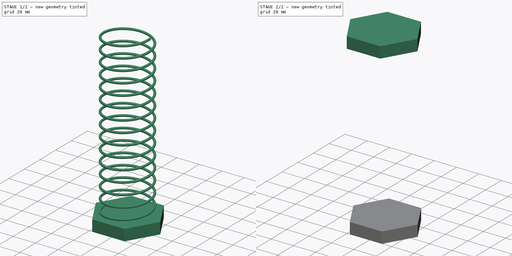
[diagram: build sequence overview — one tinted view per stage of 2, left to right]
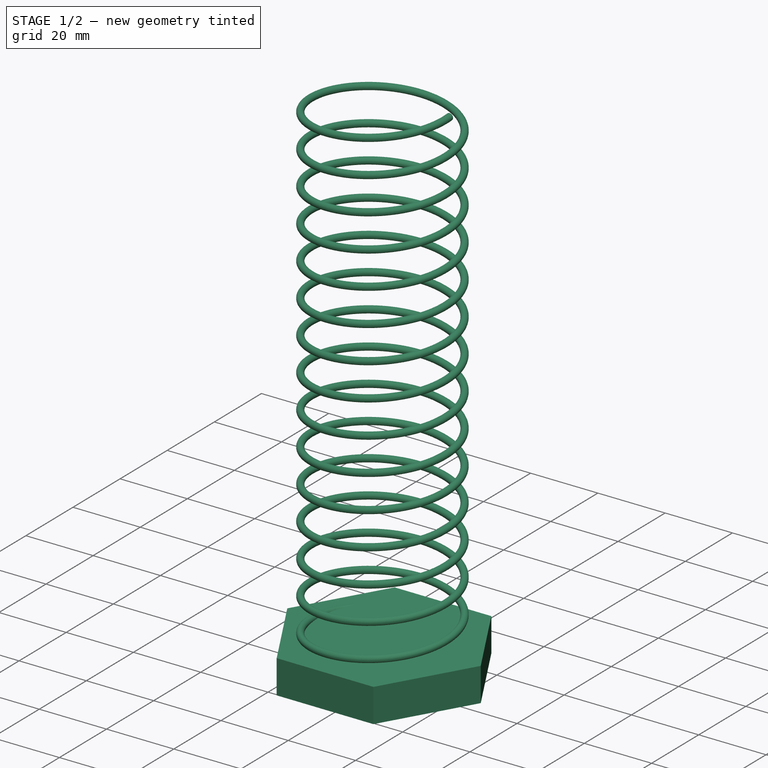
[diagram: stage 1 of 2 — iso view after this stage's code; geometry added in this stage tinted green]
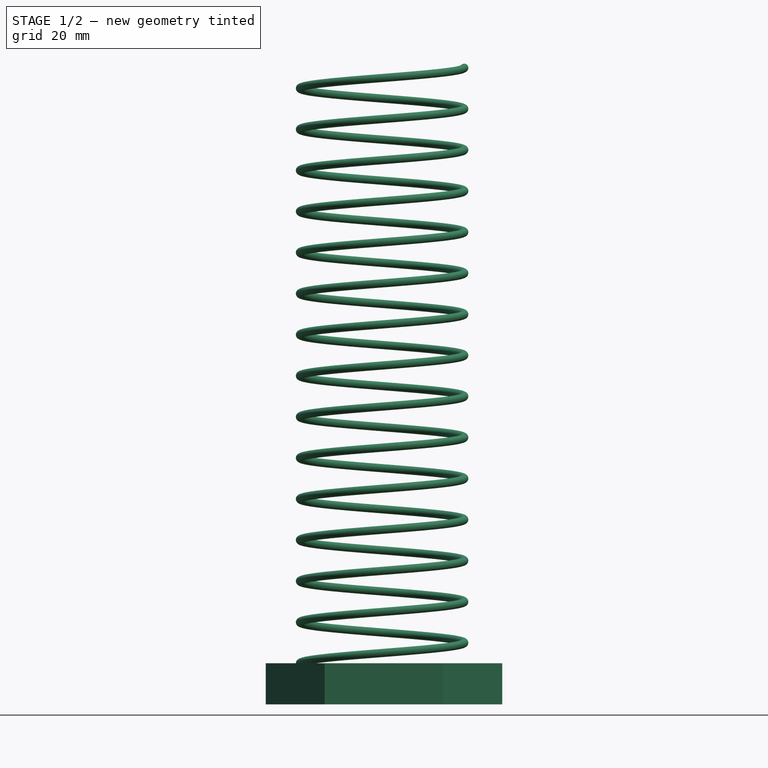
[diagram: stage 1 of 2 — front view after this stage's code; geometry added in this stage tinted green]
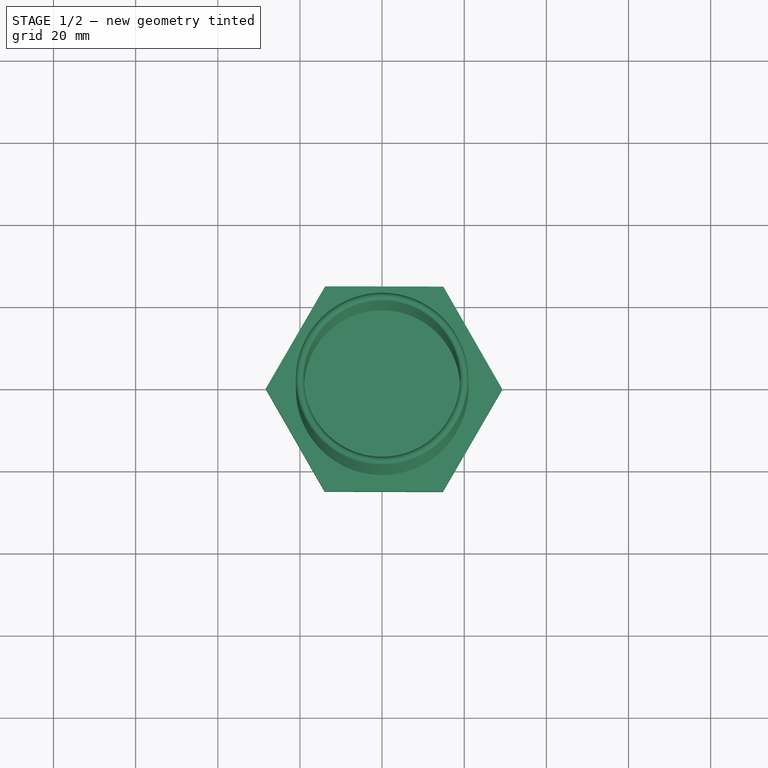
[diagram: stage 1 of 2 — top view after this stage's code; geometry added in this stage tinted green]
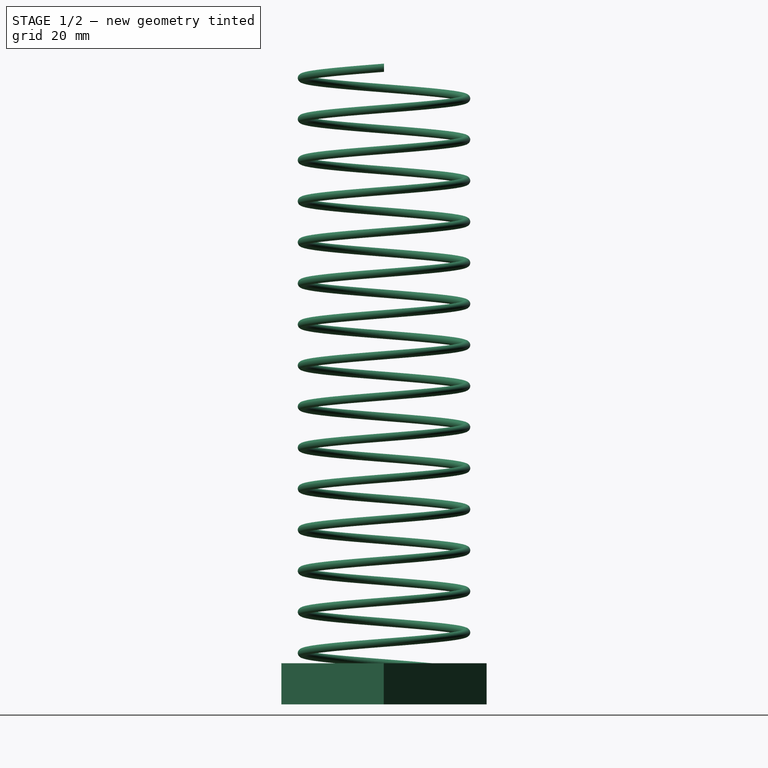
[diagram: stage 1 of 2 — right view after this stage's code; geometry added in this stage tinted green]
FCSTD DOCUMENT  (FreeCAD 0.21R33668 +26 (Git))
Label: Ressort-essai4
License: All rights reserved
LicenseURL: http://en.wikipedia.org/wiki/All_rights_reserved
objects: Sketcher::SketchObject×3, PartDesign::ShapeBinder×3, PartDesign::Plane×2, PartDesign::Pad×2, PartDesign::Body×2, Part::Helix×1, Part::Sweep×1
note: 16 computed .brp shape members not serialized (recipe doc carries the construction recipe); baked Part::Feature solids carry a one-line shape summary decoded from their .brp

FEATURE [Part::Helix] Helix001  label="Hélice001"
  Angle = 0
  AttacherType = Attacher::AttachEngine3D
  Height = 150
  LocalCoord = 0
  Pitch = 10
  Radius = 20
  SegmentLength = 0
  Style = 1
FEATURE [Sketcher::SketchObject] Sketch  label="Profile ressort"
  FullyConstrained = true
  MapMode = 5
  Placement = pos=(0,0,0) rot=(1,0,0;1.5708rad)
  Support = -> [XZ_Plane]
  sketch-geometry (1):
    g0: Circle CenterX=20 CenterY=0 CenterZ=0 NormalX=0 NormalY=0 NormalZ=1 AngleXU=0 Radius=1
  constraints (3):
    c: PointOnObject(g0,g-1)
    c: Radius(g0) = 1
    c: DistanceX(g-1,g0) = 20
FEATURE [Part::Sweep] Sweep
  Frenet = true
  Sections = -> [Sketch]
  Solid = true
  Spine = -> Helix001
  Transition = 1
FEATURE [PartDesign::Body] Body
  Group = -> [Sketch,DatumPlane,ReferenceSweep,Sketch001,Pad]
  Origin = -> Origin
  Tip = -> Pad
FEATURE [PartDesign::ShapeBinder] ReferenceSweep001
  Support = -> [Sweep]
  TraceSupport = false
FEATURE [PartDesign::ShapeBinder] ReferenceSketch
  Placement = pos=(0,0,0) rot=(1,0,0;1.5708rad)
  Support = -> [Sketch]
  TraceSupport = false
FEATURE [PartDesign::Plane] DatumPlane001
  AttachmentOffset = pos=(0,-2,0) rot=(0,1,0;1.5708rad)
  Length = 60.7329
  MapMode = 11
  Placement = pos=(22,2e-16,2e-16) rot=(0,0,1;1.5708rad)
  ResizeMode = 0
  Support = -> [ReferenceSketch]
  Width = 68.3301
FEATURE [Sketcher::SketchObject] Sketch002
  FullyConstrained = false
  MapMode = 5
  Placement = pos=(22,2e-16,2e-16) rot=(0,0,1;1.5708rad)
  Support = -> [DatumPlane001]
  sketch-geometry (7):
    g0: LineSegment StartX=-0.068299 StartY=-7.26586 StartZ=0 EndX=24.9062 EndY=7.07428 EndZ=0
    g1: LineSegment StartX=24.9062 StartY=7.07428 StartZ=0 EndX=24.9745 EndY=35.8729 EndZ=0
    g2: LineSegment StartX=24.9745 StartY=35.8729 StartZ=0 EndX=0.068299 EndY=50.3313 EndZ=0
    g3: LineSegment StartX=0.068299 StartY=50.3313 StartZ=0 EndX=-24.9062 EndY=35.9912 EndZ=0
    g4: LineSegment StartX=-24.9062 StartY=35.9912 StartZ=0 EndX=-24.9745 EndY=7.19258 EndZ=0
    g5: LineSegment StartX=-24.9745 StartY=7.19258 StartZ=0 EndX=-0.068299 EndY=-7.26586 EndZ=0
    g6: Circle CenterX=0 CenterY=21.5327 CenterZ=0 NormalX=0 NormalY=0 NormalZ=1 AngleXU=0 Radius=28.7987
  constraints (14):
    c: Coincident(g0,g1)
    c: Coincident(g1,g2)
    c: Coincident(g2,g3)
    c: Coincident(g3,g4)
    c: Coincident(g4,g5)
    c: Coincident(g5,g0)
    c: Equal(g0, g1-g5) x5
    c: PointOnObject(g0,g6)
    c: PointOnObject(g1,g6)
    c: PointOnObject(g2,g6)
    c: PointOnObject(g3,g6)
    c: PointOnObject(g4,g6)
    c: PointOnObject(g5,g6)
    c: PointOnObject(g6,g-2)
FEATURE [PartDesign::Pad] Pad001
  Direction = (-1e-16,-1e-16,1)
  Length = 10
  Length2 = 10
  Midplane = true
  Placement = pos=(22,0,0) rot=(0,0,1;1.5708rad)
  Profile = -> Sketch002
  ReferenceAxis = -> Sketch002 [N_Axis]
  Type = 0
FEATURE [PartDesign::Body] Body001  label="Corps"
  Group = -> [ReferenceSweep001,DatumPlane001,ReferenceSketch,Sketch002,Pad001]
  Origin = -> Origin001
  Tip = -> Pad001
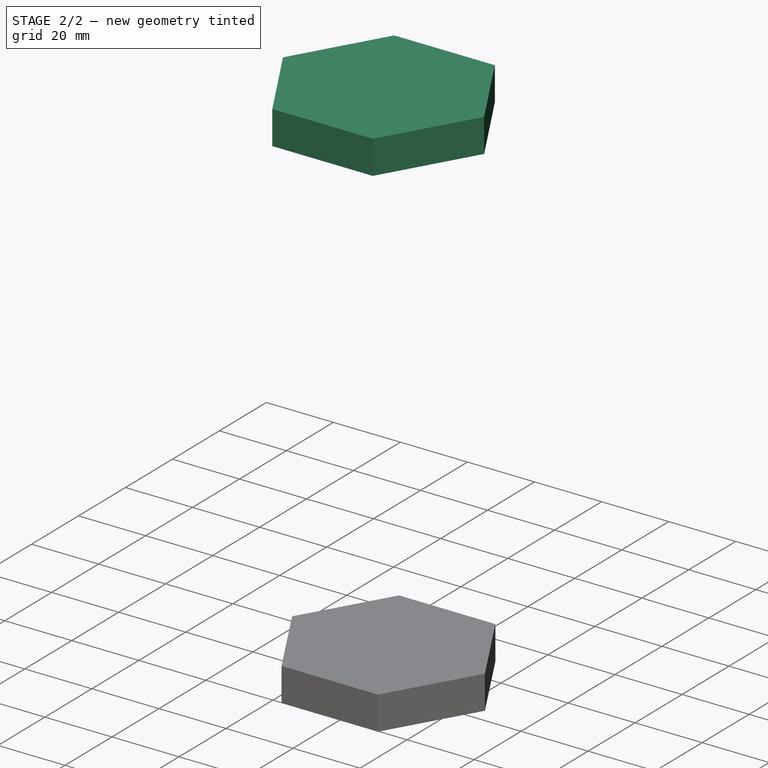
[diagram: stage 2 of 2 — iso view after this stage's code; geometry added in this stage tinted green]
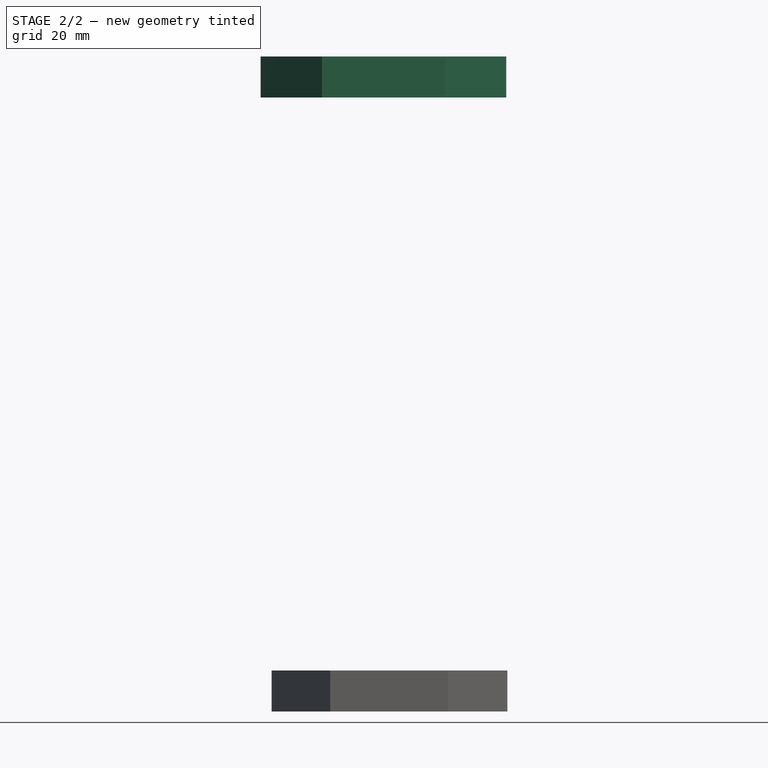
[diagram: stage 2 of 2 — front view after this stage's code; geometry added in this stage tinted green]
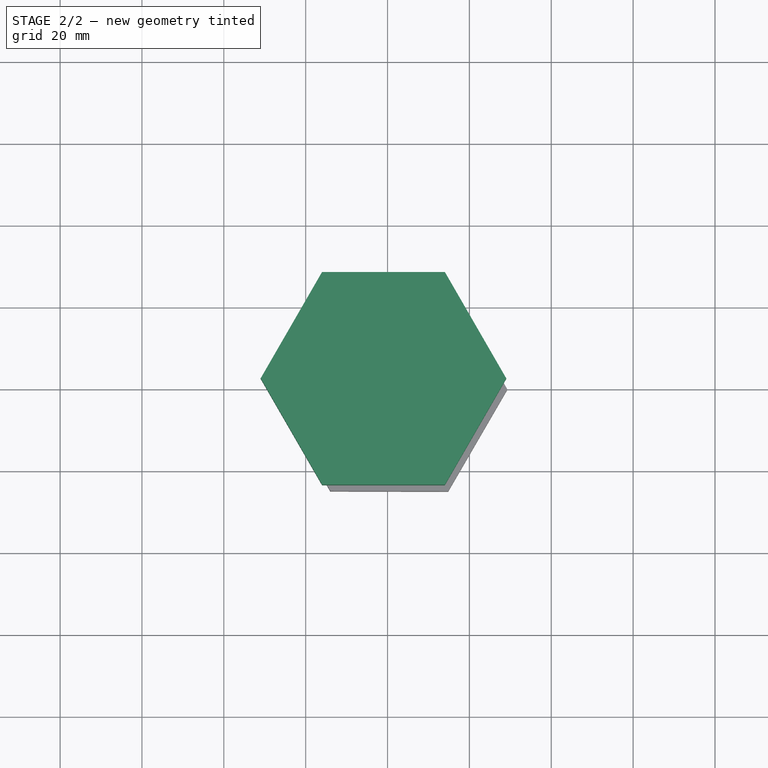
[diagram: stage 2 of 2 — top view after this stage's code; geometry added in this stage tinted green]
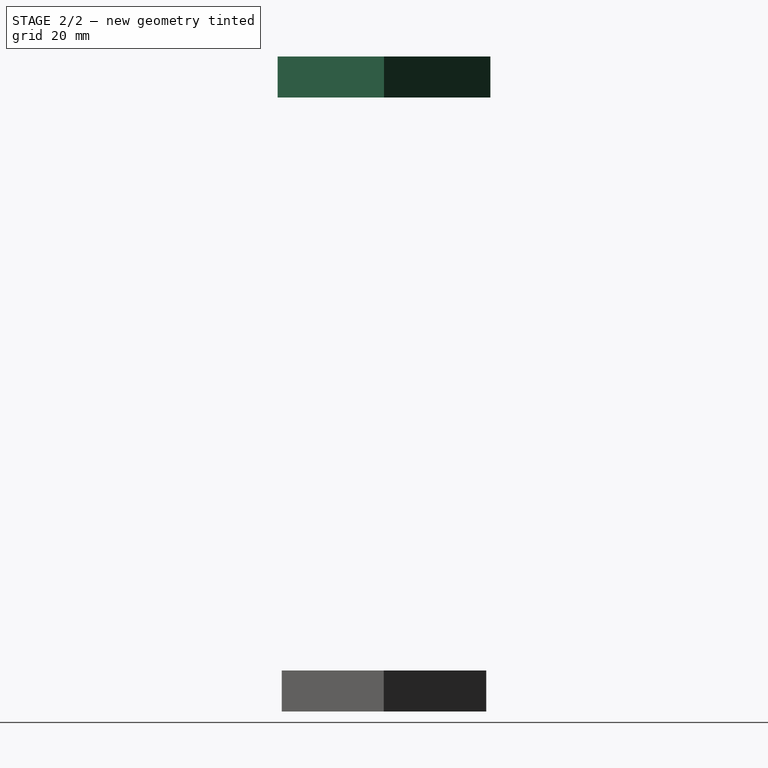
[diagram: stage 2 of 2 — right view after this stage's code; geometry added in this stage tinted green]
FEATURE [PartDesign::ShapeBinder] ReferenceSweep
  Support = -> [Sweep]
  TraceSupport = false
FEATURE [PartDesign::Plane] DatumPlane
  Length = 71.1673
  MapMode = 8
  Placement = pos=(21,4.04704e-09,150) rot=(1,0,0;3.14159rad)
  ResizeMode = 0
  Support = -> [ReferenceSweep]
  Width = 63.1288
FEATURE [Sketcher::SketchObject] Sketch001
  FullyConstrained = true
  MapMode = 5
  Placement = pos=(21,4.04704e-09,150) rot=(1,0,0;3.14159rad)
  Support = -> [DatumPlane]
  sketch-geometry (7):
    g0: LineSegment StartX=-37 StartY=-25.9808 StartZ=0 EndX=-7 EndY=-25.9808 EndZ=0
    g1: LineSegment StartX=-7 StartY=-25.9808 StartZ=0 EndX=8 EndY=3.6e-15 EndZ=0
    g2: LineSegment StartX=8 StartY=3.6e-15 StartZ=0 EndX=-7 EndY=25.9808 EndZ=0
    g3: LineSegment StartX=-7 StartY=25.9808 StartZ=0 EndX=-37 EndY=25.9808 EndZ=0
    g4: LineSegment StartX=-37 StartY=25.9808 StartZ=0 EndX=-52 EndY=0 EndZ=0
    g5: LineSegment StartX=-52 StartY=0 StartZ=0 EndX=-37 EndY=-25.9808 EndZ=0
    g6: Circle CenterX=-22 CenterY=0 CenterZ=0 NormalX=0 NormalY=0 NormalZ=1 AngleXU=0 Radius=30
  constraints (17):
    c: Coincident(g0,g1)
    c: Coincident(g1,g2)
    c: Coincident(g2,g3)
    c: Coincident(g3,g4)
    c: Coincident(g4,g5)
    c: Coincident(g5,g0)
    c: Equal(g0, g1-g5) x5
    c: PointOnObject(g0,g6)
    c: PointOnObject(g1,g6)
    c: PointOnObject(g2,g6)
    c: PointOnObject(g3,g6)
    c: PointOnObject(g4,g6)
    c: PointOnObject(g5,g6)
    c: PointOnObject(g6,g-1)
    c: PointOnObject(g4,g-1)
    c: Radius(g6) = 30
    c: DistanceX(g6,g-1) = 22
FEATURE [PartDesign::Pad] Pad
  Direction = (-5.08882e-08,-1.08948e-11,-1)
  Length = 10
  Length2 = 10
  Midplane = true
  Placement = pos=(21,4.04704e-09,150) rot=(1,0,0;3.14159rad)
  Profile = -> Sketch001
  ReferenceAxis = -> Sketch001 [N_Axis]
  Type = 0
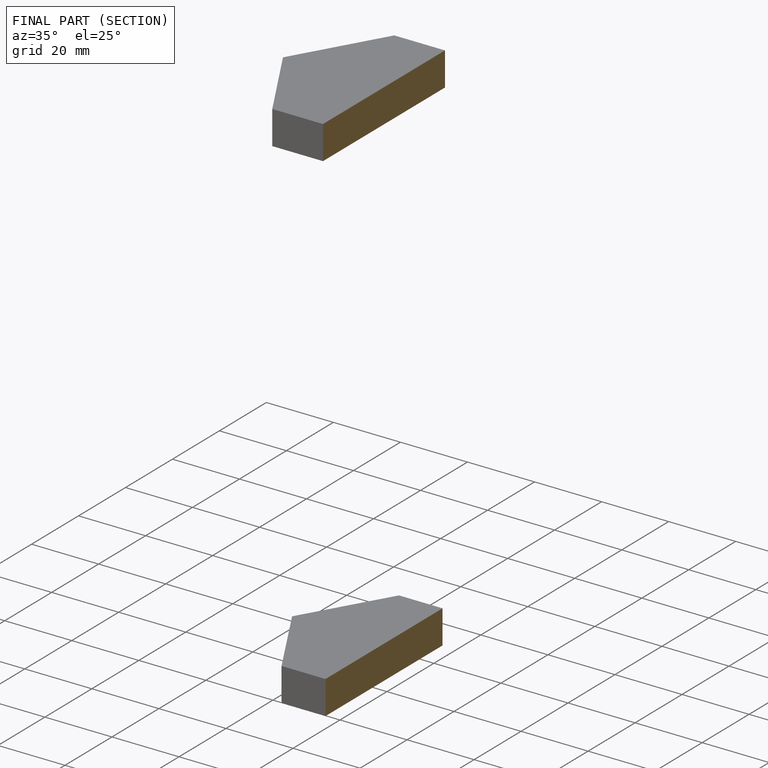
[diagram: finished part — half-section view (interior)]
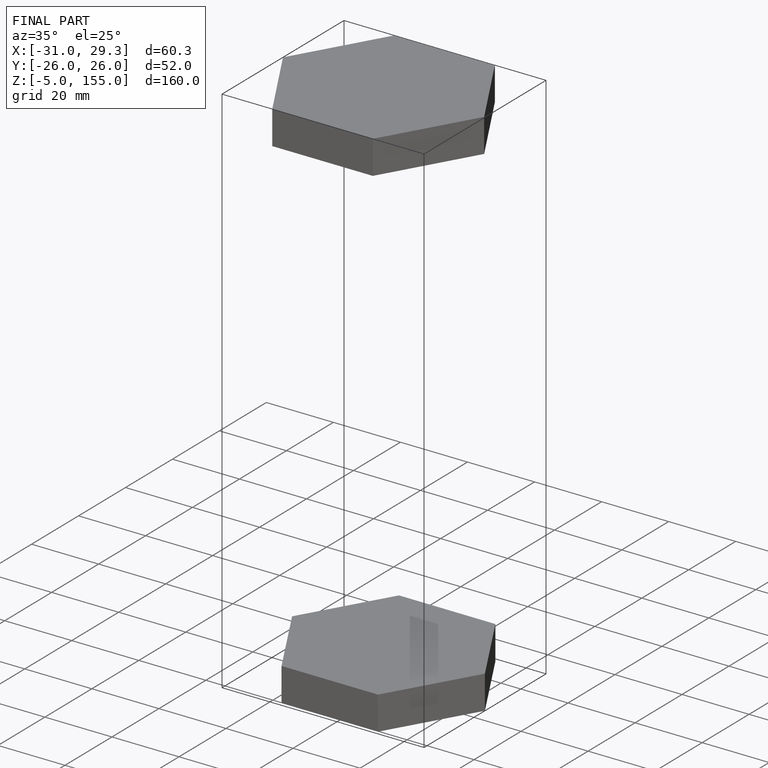
[diagram: finished part — iso view with bounding-box wireframe]
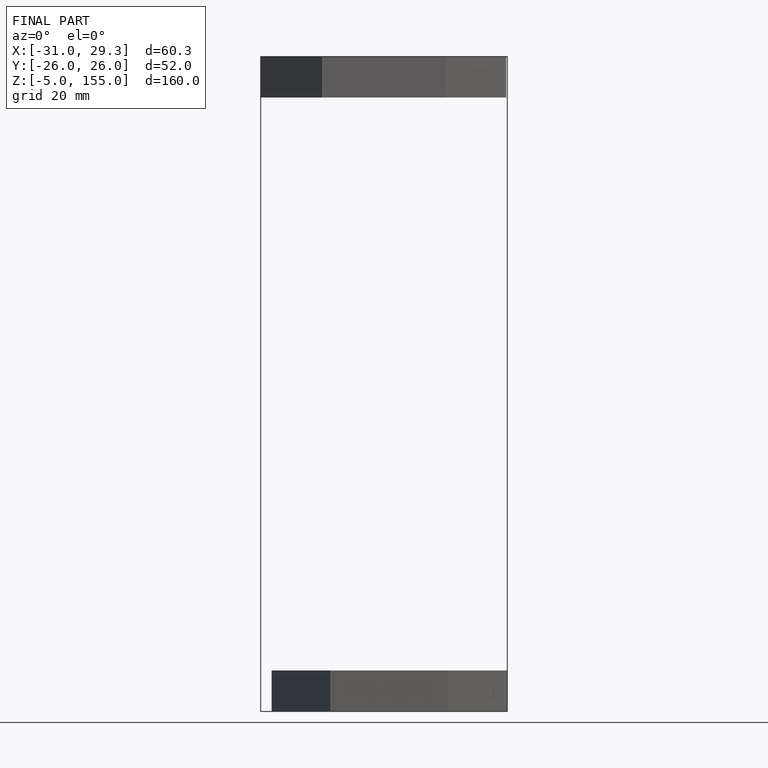
[diagram: finished part — front view with bounding-box wireframe]
